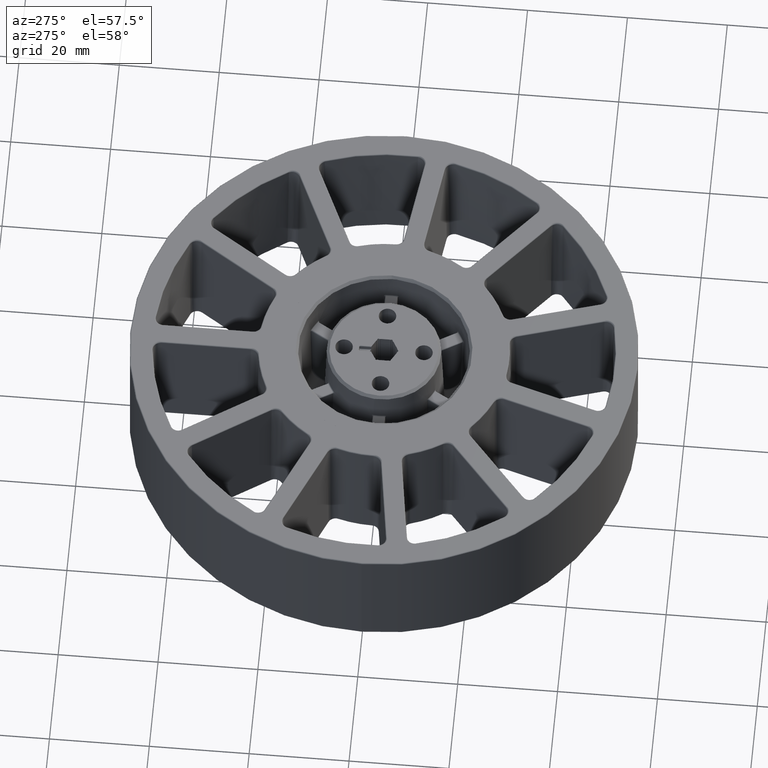
[diagram: clean part render]
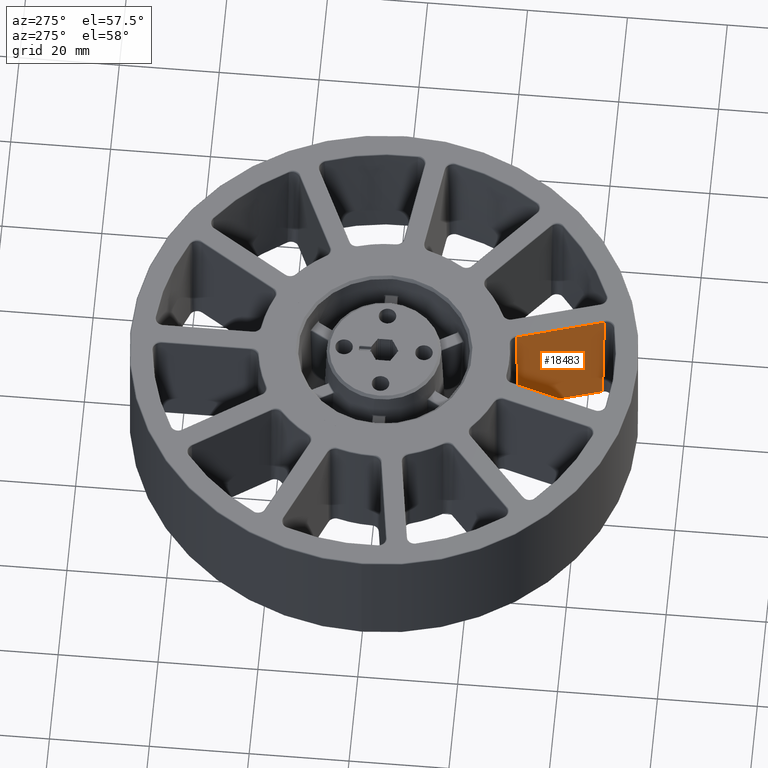
[diagram: same view with one face highlighted and labeled with its STEP entity id]
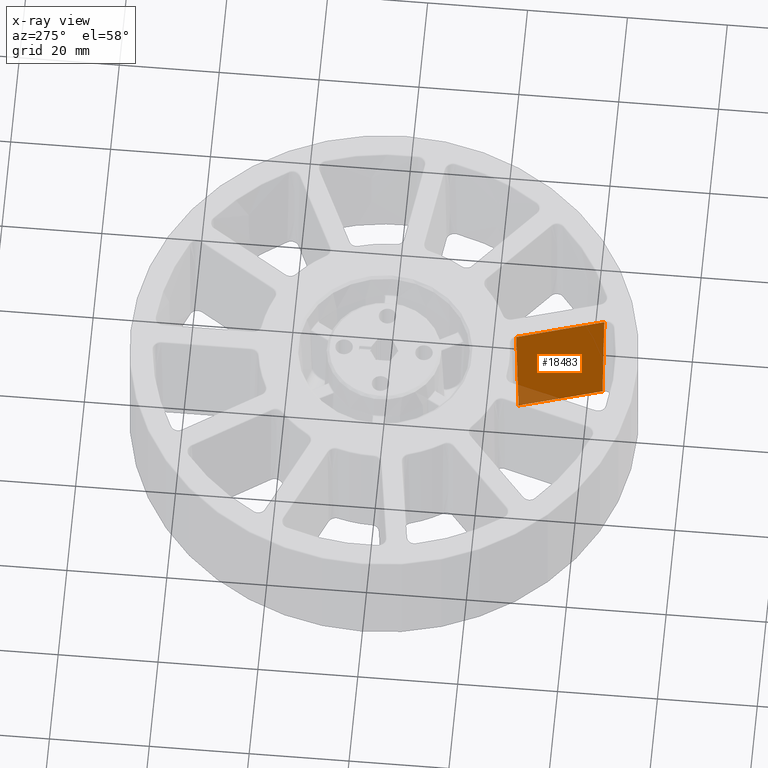
[diagram: x-ray of the same camera — body ghosted, the highlighted face saturated]
A machine part, auxiliary view. The second image highlights one B-rep face of the part: STEP entity #18483.
The next image is the same camera in x-ray: the body ghosted, the highlighted face saturated — about 7% of this face is hidden behind the body in this view.
In plain terms, the highlighted planar face has unit normal (-0.9593, -0.2817, 0.0175).
Its self-contained STEP definition (entity closure, byte-faithful):
#14 = EDGE_CURVE ( 'NONE', #7999, #13667, #20152, .T. ) ;
#122 = B_SPLINE_CURVE_WITH_KNOTS ( 'NONE', 3,
 ( #5533, #14510, #22985, #3299 ),
 .UNSPECIFIED., .F., .F.,
 ( 4, 4 ),
 ( 0.0002496339036662443460, 0.02514825751138456689 ),
 .UNSPECIFIED. ) ;
#474 = EDGE_CURVE ( 'NONE', #13939, #3240, #7452, .T. ) ;
#1127 = AXIS2_PLACEMENT_3D ( 'NONE', #19719, #28156, #8891 ) ;
#1176 = CARTESIAN_POINT ( 'NONE',  ( 5.445562558265794273, -26.00330133914546238, 12.45043291123506890 ) ) ;
#2574 = EDGE_LOOP ( 'NONE', ( #10391, #10423, #10465, #10469 ) ) ;
#2875 = VECTOR ( 'NONE', #20048, 1000.000000000000000 ) ;
#3240 = VERTEX_POINT ( 'NONE', #1176 ) ;
#3299 = CARTESIAN_POINT ( 'NONE',  ( 5.134465541012041001, -26.48601471650756167, -12.44156708876493056 ) ) ;
#4035 = DIRECTION ( 'NONE',  ( -0.2817325568414371095, 0.9594929736144952592, -8.672295943637660851E-19 ) ) ;
#4074 = CARTESIAN_POINT ( 'NONE',  ( 5.444494266864440490, -25.99966307275245470, 12.45043291123506890 ) ) ;
#5278 = CARTESIAN_POINT ( 'NONE',  ( 10.49835303661999575, -43.21152539205697707, 12.45043291123507068 ) ) ;
#5533 = CARTESIAN_POINT ( 'NONE',  ( 5.445562558265794273, -26.00330133914546238, 12.45043291123506890 ) ) ;
#7452 = LINE ( 'NONE', #4074, #18149 ) ;
#7540 = CARTESIAN_POINT ( 'NONE',  ( 9.947751378537173395, -42.87856087049279097, -12.44156708876493056 ) ) ;
#7999 = VERTEX_POINT ( 'NONE', #28242 ) ;
#8891 = DIRECTION ( 'NONE',  ( 0.2817325568414371095, -0.9594929736144952592, 0.0000000000000000000 ) ) ;
#9213 = EDGE_CURVE ( 'NONE', #3240, #7999, #122, .T. ) ;
#10391 = ORIENTED_EDGE ( 'NONE', *, *, #9213, .T. ) ;
#10423 = ORIENTED_EDGE ( 'NONE', *, *, #14, .T. ) ;
#10465 = ORIENTED_EDGE ( 'NONE', *, *, #26045, .T. ) ;
#10469 = ORIENTED_EDGE ( 'NONE', *, *, #474, .T. ) ;
#10818 = CARTESIAN_POINT ( 'NONE',  ( 10.49835303661999575, -43.21152539205697707, 12.45043291123507068 ) ) ;
#13667 = VERTEX_POINT ( 'NONE', #22121 ) ;
#13939 = VERTEX_POINT ( 'NONE', #10818 ) ;
#14510 = CARTESIAN_POINT ( 'NONE',  ( 5.342113726489760239, -26.16505698068387531, 4.153113005094424715 ) ) ;
#15278 = FACE_OUTER_BOUND ( 'NONE', #2574, .T. ) ;
#16137 = B_SPLINE_CURVE_WITH_KNOTS ( 'NONE', 3,
 ( #7540, #16401, #24838, #5278 ),
 .UNSPECIFIED., .F., .F.,
 ( 4, 4 ),
 ( 0.0002585197523565944738, 0.02515883484189918723 ),
 .UNSPECIFIED. ) ;
#16401 = CARTESIAN_POINT ( 'NONE',  ( 10.13152558197223740, -42.99036850146488575, -4.144250076482665968 ) ) ;
#18149 = VECTOR ( 'NONE', #4035, 1000.000000000000000 ) ;
#18483 = ADVANCED_FACE ( 'NONE', ( #15278 ), #23734, .T. ) ;
#19719 = CARTESIAN_POINT ( 'NONE',  ( 3.603252919410558253, -21.28719493965231635, -12.69999999999999929 ) ) ;
#20048 = DIRECTION ( 'NONE',  ( 0.2817325568414371095, -0.9594929736144952592, 8.672295943637660851E-19 ) ) ;
#20143 = CARTESIAN_POINT ( 'NONE',  ( 9.946355602497918724, -42.87380729384754829, -12.44156708876493056 ) ) ;
#20152 = LINE ( 'NONE', #20143, #2875 ) ;
#22121 = CARTESIAN_POINT ( 'NONE',  ( 9.947751378537173395, -42.87856087049279097, -12.44156708876493056 ) ) ;
#22985 = CARTESIAN_POINT ( 'NONE',  ( 5.238411222791953037, -26.32594954427327494, -4.144220608770253556 ) ) ;
#23734 = PLANE ( 'NONE',  #1127 ) ;
#24838 = CARTESIAN_POINT ( 'NONE',  ( 10.31505690313651336, -43.10134792404016935, 4.153083517634013511 ) ) ;
#26045 = EDGE_CURVE ( 'NONE', #13667, #13939, #16137, .T. ) ;
#28156 = DIRECTION ( 'NONE',  ( -0.9593468381872051198, -0.2816896476084278511, 0.01745240643728354635 ) ) ;
#28242 = CARTESIAN_POINT ( 'NONE',  ( 5.134465541012041001, -26.48601471650756167, -12.44156708876493056 ) ) ;